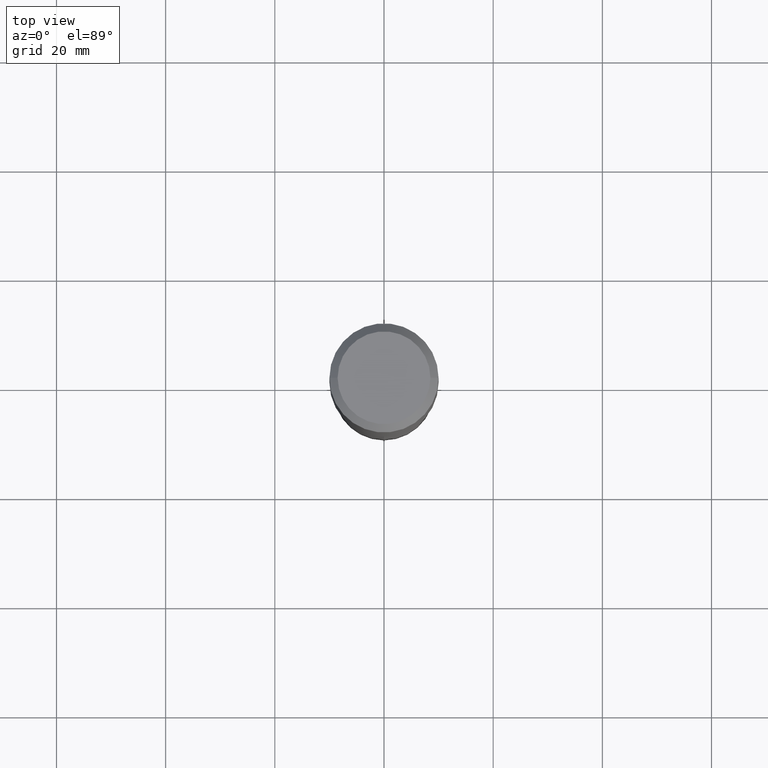
[diagram: clean part render]
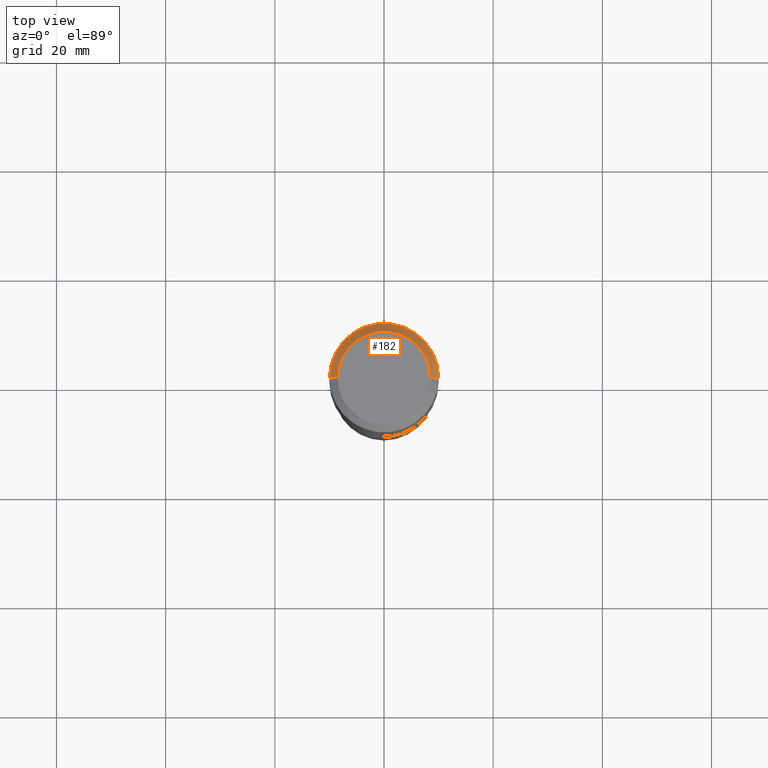
[diagram: same view with one face highlighted and labeled with its STEP entity id]
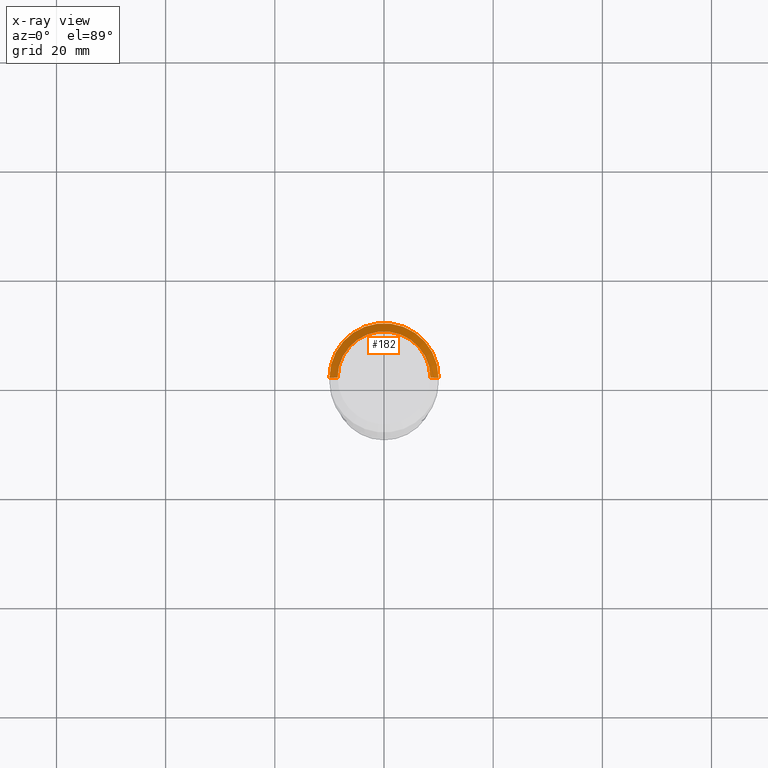
[diagram: x-ray of the same camera — body ghosted, the highlighted face saturated]
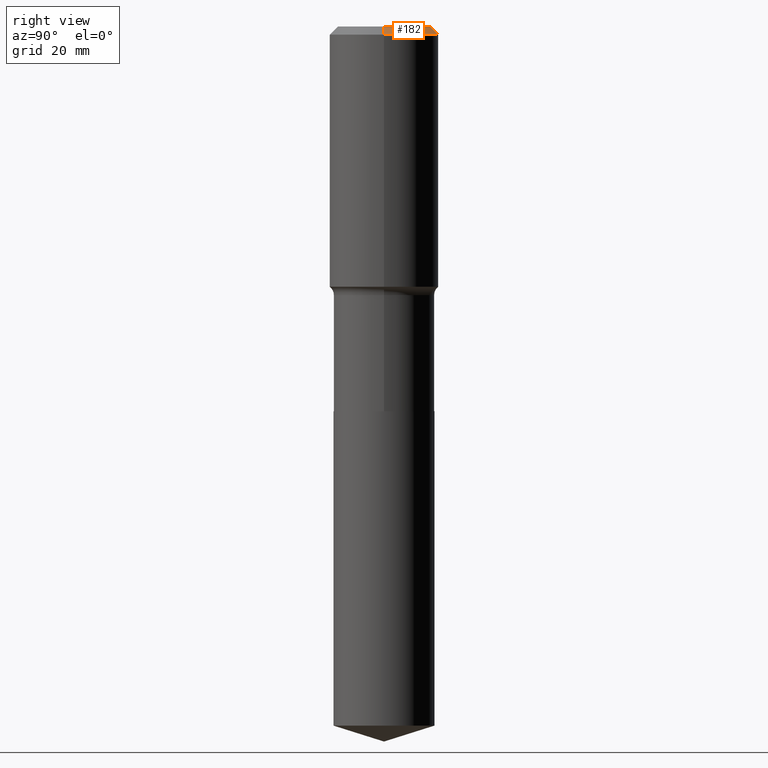
[diagram: same view with one face highlighted and labeled with its STEP entity id]
A machine part, top view. The second image highlights one B-rep face of the part: STEP entity #182.
The next image is the same camera in x-ray: the body ghosted, the highlighted face saturated — about 0% of this face is hidden behind the body in this view.
A second angle (right view) of the same face is appended — the face is thin or edge-on in the first view.
In plain terms, the highlighted conical surface has half-angle 45 deg.
Its self-contained STEP definition (entity closure, byte-faithful):
#6 = CARTESIAN_POINT ( 'NONE',  ( -0.3346450000000000258, 2.439908260507010921E-15, 4.096137381431419798E-18 ) ) ;
#18 = CARTESIAN_POINT ( 'NONE',  ( 1.444171603492640671E-30, -2.061894304653831493E-16, -0.05905500000000033639 ) ) ;
#22 = CIRCLE ( 'NONE', #69, 0.3937000000000000499 ) ;
#37 = AXIS2_PLACEMENT_3D ( 'NONE', #155, #39, #197 ) ;
#39 = DIRECTION ( 'NONE',  ( 2.445468806185136597E-29, -3.491481338843145583E-15, -1.000000000000000000 ) ) ;
#46 = DIRECTION ( 'NONE',  ( -2.445468806185136597E-29, 3.491481338843145583E-15, 1.000000000000000000 ) ) ;
#64 = DIRECTION ( 'NONE',  ( -0.7071067811865453523, 2.468850131082234184E-15, -0.7071067811865496822 ) ) ;
#69 = AXIS2_PLACEMENT_3D ( 'NONE', #18, #284, #93 ) ;
#88 = VECTOR ( 'NONE', #129, 39.37007874015748143 ) ;
#90 = CIRCLE ( 'NONE', #441, 0.3346450000000000258 ) ;
#91 = ORIENTED_EDGE ( 'NONE', *, *, #340, .F. ) ;
#93 = DIRECTION ( 'NONE',  ( 1.000000000000000000, -6.982962677686265922E-15, 0.000000000000000000 ) ) ;
#100 = VERTEX_POINT ( 'NONE', #163 ) ;
#114 = FACE_OUTER_BOUND ( 'NONE', #263, .T. ) ;
#129 = DIRECTION ( 'NONE',  ( 0.7071067811865453523, -7.319954787623248157E-15, -0.7071067811865496822 ) ) ;
#151 = VERTEX_POINT ( 'NONE', #6 ) ;
#155 = CARTESIAN_POINT ( 'NONE',  ( 1.444171603492640671E-30, -2.061894304653831493E-16, -0.05905500000000033639 ) ) ;
#160 = VECTOR ( 'NONE', #64, 39.37007874015748143 ) ;
#163 = CARTESIAN_POINT ( 'NONE',  ( -0.3937000000000000499, -5.823948184340036238E-16, -0.05905500000000033639 ) ) ;
#168 = CARTESIAN_POINT ( 'NONE',  ( -1.001697619218025096E-46, 1.430158722866394644E-32, 4.096137381448122233E-18 ) ) ;
#180 = LINE ( 'NONE', #213, #88 ) ;
#181 = VERTEX_POINT ( 'NONE', #335 ) ;
#182 = ADVANCED_FACE ( 'NONE', ( #114 ), #256, .T. ) ;
#188 = ORIENTED_EDGE ( 'NONE', *, *, #331, .T. ) ;
#197 = DIRECTION ( 'NONE',  ( -1.000000000000000000, 6.982962677686265922E-15, 0.000000000000000000 ) ) ;
#213 = CARTESIAN_POINT ( 'NONE',  ( 0.3937000000000000499, -2.907167492188035412E-15, -0.05905500000000033639 ) ) ;
#214 = VERTEX_POINT ( 'NONE', #348 ) ;
#239 = EDGE_CURVE ( 'NONE', #151, #100, #400, .T. ) ;
#256 = CONICAL_SURFACE ( 'NONE', #37, 0.3937000000000000499, 0.7853981633974452814 ) ;
#263 = EDGE_LOOP ( 'NONE', ( #91, #445, #188, #425 ) ) ;
#268 = EDGE_CURVE ( 'NONE', #214, #181, #180, .T. ) ;
#284 = DIRECTION ( 'NONE',  ( -2.445468806185136597E-29, 3.491481338843145583E-15, 1.000000000000000000 ) ) ;
#331 = EDGE_CURVE ( 'NONE', #181, #100, #22, .T. ) ;
#335 = CARTESIAN_POINT ( 'NONE',  ( 0.3937000000000000499, -2.955381836670466588E-15, -0.05905500000000033639 ) ) ;
#340 = EDGE_CURVE ( 'NONE', #214, #151, #90, .T. ) ;
#348 = CARTESIAN_POINT ( 'NONE',  ( 0.3346450000000000258, -2.601499422326145188E-15, 4.096137381465388580E-18 ) ) ;
#358 = DIRECTION ( 'NONE',  ( 1.000000000000000000, -6.982962677686267499E-15, 4.876152824003125403E-29 ) ) ;
#400 = LINE ( 'NONE', #442, #160 ) ;
#425 = ORIENTED_EDGE ( 'NONE', *, *, #239, .F. ) ;
#441 = AXIS2_PLACEMENT_3D ( 'NONE', #168, #46, #358 ) ;
#442 = CARTESIAN_POINT ( 'NONE',  ( -0.3937000000000000499, 2.543002975739700240E-15, -0.05905500000000033639 ) ) ;
#445 = ORIENTED_EDGE ( 'NONE', *, *, #268, .T. ) ;